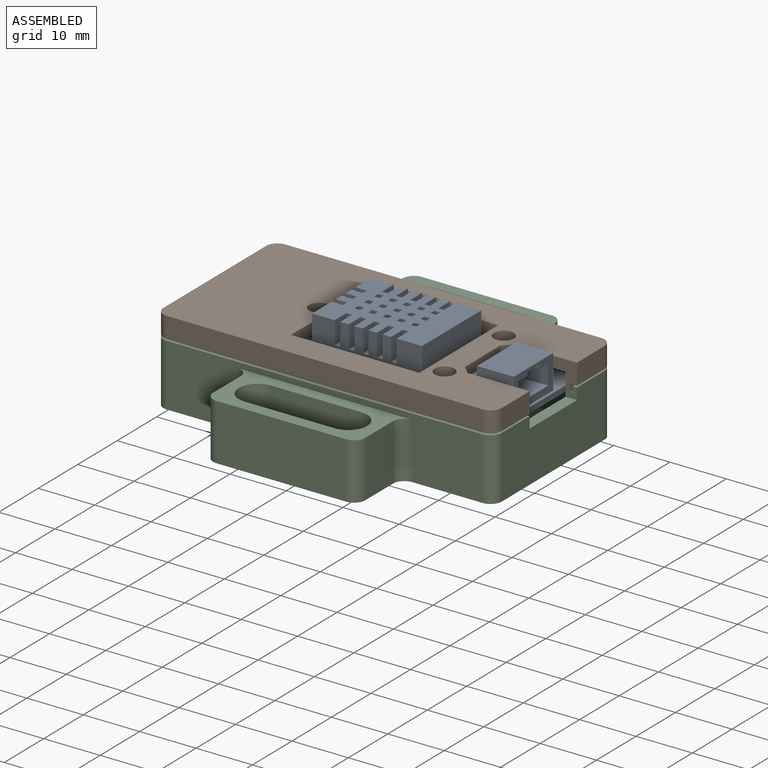
[diagram: assembled view]
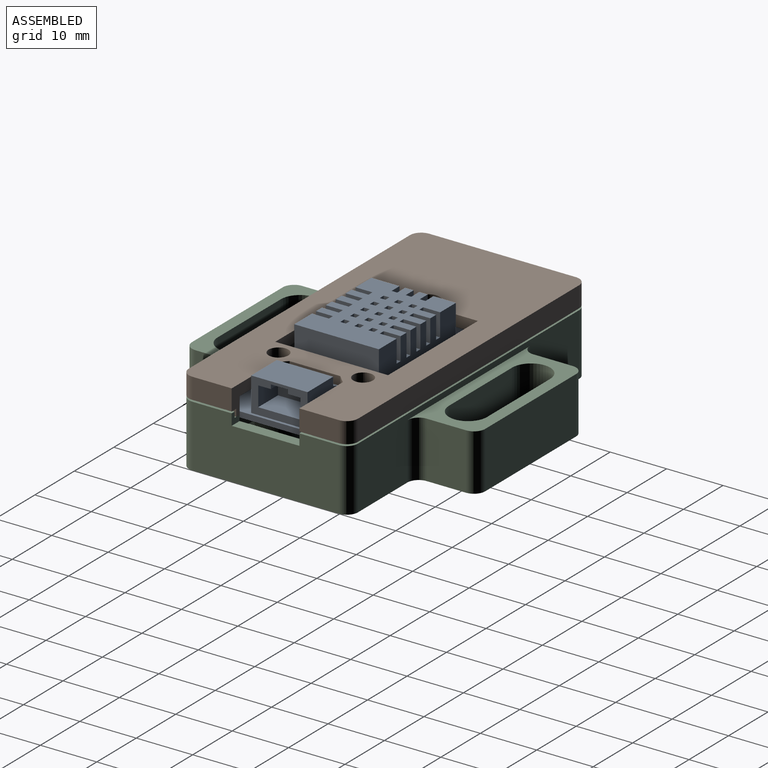
[diagram: assembled view, second angle]
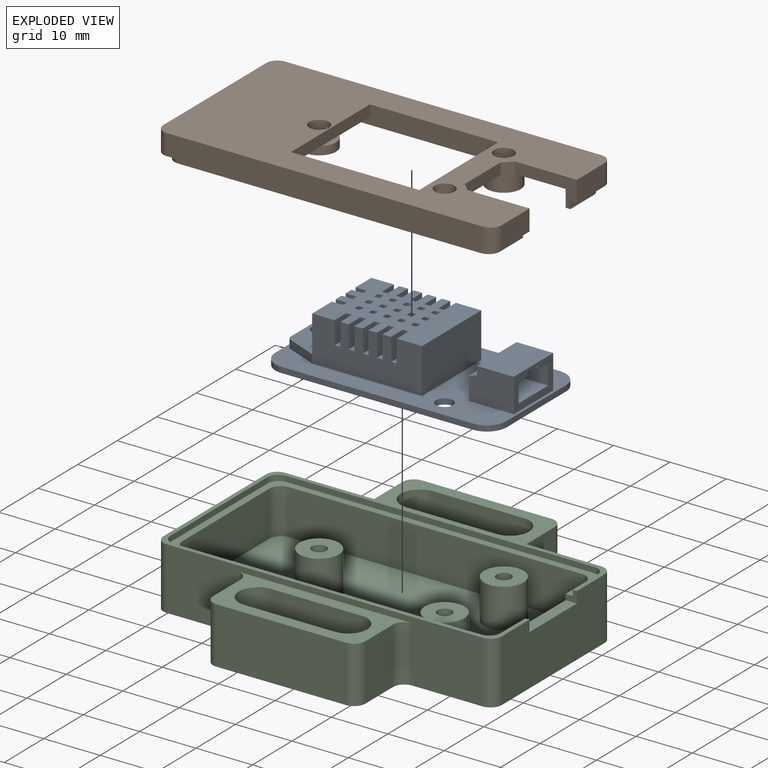
[diagram: exploded view]
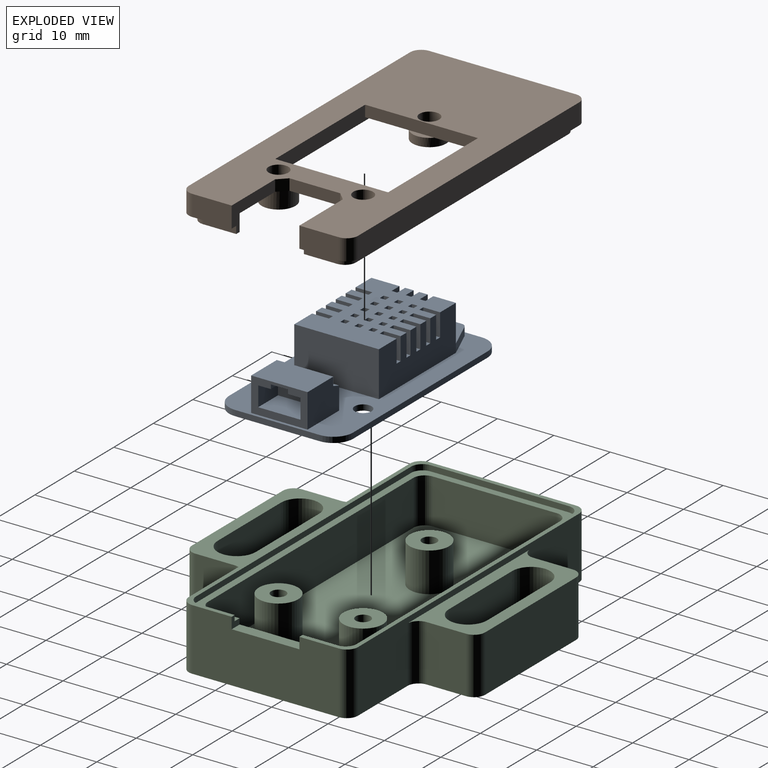
[diagram: exploded view, second angle]
ASSEMBLY  parts=3 mates=6
PART A: 169 faces, bbox 41x22x9 mm
  f0: plane 19.5x8mm, normal (0,-1,0), area 136mm2, adj f1,f9,f30,f32,f33,f63,f65,f66
  f1: plane 19.5x15mm, normal (0,0,-1), area 241.5mm2, adj f0,f30,f31,f32,f42,f43,f44,f45
  f2: plane 5x2.25mm, normal (0,0,1), area 11.3mm2, adj f3,f22,f26,f28
  f3: plane 10x6mm, normal (1,0,0), area 31.5mm2, adj f2,f4,f6,f7,f9,f22,f23,f24
  f4: plane 8x6mm, normal (0,-1,0), area 45.4mm2, adj f3,f5,f7,f9,f20,f21
  f5: plane 10x4mm, normal (-1,0,0), area 40mm2, adj f4,f6,f9,f21
  f6: plane 8x6mm, normal (0,1,0), area 45.4mm2, adj f3,f5,f7,f9,f20,f21
  f7: plane 10x6.5mm, normal (0,0,-1), area 65mm2, adj f3,f4,f6,f20
  f8: plane 41x22mm, normal (0,0,1), area 870.3mm2, adj f10,f11,f12,f13,f14,f15,f16,f17
  f9: plane 41x22mm, normal (0,0,-1), area 430mm2, adj f0,f3,f4,f5,f6,f10,f11,f12
  f10: plane 15x1mm, normal (1,0,0), area 15mm2, adj f8,f9,f16,f19
  f11: plane 34x1mm, normal (0,1,0), area 34mm2, adj f8,f9,f16,f17
  f12: plane 15x1mm, normal (-1,0,0), area 15mm2, adj f8,f9,f17,f18
  f13: plane 34x1mm, normal (0,-1,0), area 34mm2, adj f8,f9,f18,f19
  f14: cylinder r=1.5mm len=3mm, axis (0,0,1), area 9.4mm2, adj f8,f9
  f15: cylinder r=1.5mm len=3mm, axis (0,0,1), area 9.4mm2, adj f8,f9
  f16: cylinder r=3.5mm len=3.5mm, axis (0,0,1), area 5.5mm2, adj f8,f9,f10,f11
  f17: cylinder r=3.5mm len=3.5mm, axis (0,0,-1), area 5.5mm2, adj f8,f9,f11,f12
  f18: cylinder r=3.5mm len=3.5mm, axis (0,0,1), area 5.5mm2, adj f8,f9,f12,f13
  f19: cylinder r=3.5mm len=3.5mm, axis (0,0,-1), area 5.5mm2, adj f8,f9,f10,f13
  f20: plane 10x1.5mm, normal (-1,0,0), area 15mm2, adj f4,f6,f7,f21
  f21: plane 10x1.5mm, normal (-0.32,0,-0.95), area 15.8mm2, adj f4,f5,f6,f20
  f22: plane 5x3.5mm, normal (0,1,0), area 17.5mm2, adj f2,f3,f25,f26
  f23: plane 5x2.25mm, normal (0,0,1), area 11.3mm2, adj f3,f24,f26,f27
  f24: plane 5x3.5mm, normal (0,-1,0), area 17.5mm2, adj f3,f23,f25,f26
  f25: plane 7.5x5mm, normal (0,0,-1), area 37.5mm2, adj f3,f22,f24,f26
  f26: plane 7.5x4.25mm, normal (1,0,0), area 28.5mm2, adj f2,f22,f23,f24,f25,f27,f28,f29
  f27: plane 5x0.75mm, normal (0,-1,0), area 3.7mm2, adj f3,f23,f26,f29
  f28: plane 5x0.75mm, normal (0,1,0), area 3.7mm2, adj f2,f3,f26,f29
  f29: plane 5x3mm, normal (0,0,1), area 15mm2, adj f3,f26,f27,f28
  f30: plane 15x6.5mm, normal (-1,0,0), area 85.5mm2, adj f0,f1,f31,f36,f47,f48,f50,f51
  f31: plane 19.5x8mm, normal (0,1,0), area 136mm2, adj f1,f9,f30,f32,f35,f59,f61,f62
  f32: plane 15x8mm, normal (1,0,0), area 120mm2, adj f0,f1,f9,f31
  f33: plane 5.38x2.24mm, normal (-0.38,-0.92,0), area 8.7mm2, adj f0,f9,f36,f37
  f34: plane 8.67x1.5mm, normal (-1,0,0), area 13mm2, adj f9,f36,f37,f38
  f35: plane 5.38x2.24mm, normal (-0.38,0.92,0), area 8.7mm2, adj f9,f31,f36,f38
  f36: plane 15x6mm, normal (0,0,-1), area 69.1mm2, adj f30,f33,f34,f35,f37,f38,f41
  f37: cylinder r=1mm len=1.5mm, axis (0,0,1), area 1.8mm2, adj f9,f33,f34,f36
  f38: cylinder r=1mm len=1.5mm, axis (0,0,-1), area 1.8mm2, adj f9,f34,f35,f36
  f39: plane 3x3mm, normal (0,0,1), area 1.3mm2, adj f40,f41
  f40: cylinder r=1.5mm len=3mm, axis (0,0,1), area 9.4mm2, adj f8,f39
  f41: cylinder r=1.35mm len=2.7mm, axis (0,0,1), area 12.7mm2, adj f36,f39
  f42: plane 4x1mm, normal (0,1,0), area 4mm2, adj f1,f43,f45,f46
  f43: plane 4x1mm, normal (1,0,0), area 4mm2, adj f1,f42,f44,f46
  f44: plane 4x1mm, normal (0,-1,0), area 4mm2, adj f1,f43,f45,f46
  f45: plane 4x1mm, normal (-1,0,0), area 4mm2, adj f1,f42,f44,f46
  f46: plane 1x1mm, normal (0,0,-1), area 1mm2, adj f42,f43,f44,f45
  f47: plane 4x2mm, normal (0,1,0), area 8mm2, adj f1,f30,f49,f50
  f48: plane 4x2mm, normal (0,-1,0), area 8mm2, adj f1,f30,f49,f50
  f49: plane 4x1mm, normal (-1,0,0), area 4mm2, adj f1,f47,f48,f50
  f50: plane 2x1mm, normal (0,0,-1), area 2mm2, adj f30,f47,f48,f49
  f51: plane 4x2mm, normal (0,1,0), area 8mm2, adj f1,f30,f53,f54
  f52: plane 4x2mm, normal (0,-1,0), area 8mm2, adj f1,f30,f53,f54
  f53: plane 4x1mm, normal (-1,0,0), area 4mm2, adj f1,f51,f52,f54
  f54: plane 2x1mm, normal (0,0,-1), area 2mm2, adj f30,f51,f52,f53
  f55: plane 4x2mm, normal (0,1,0), area 8mm2, adj f1,f30,f57,f58
  f56: plane 4x2mm, normal (0,-1,0), area 8mm2, adj f1,f30,f57,f58
  f57: plane 4x1mm, normal (-1,0,0), area 4mm2, adj f1,f55,f56,f58
  f58: plane 2x1mm, normal (0,0,-1), area 2mm2, adj f30,f55,f56,f57
  f59: plane 4x3mm, normal (-1,0,0), area 12mm2, adj f1,f31,f60,f62
  f60: plane 4x1mm, normal (0,1,0), area 4mm2, adj f1,f59,f61,f62
  f61: plane 4x3mm, normal (1,0,0), area 12mm2, adj f1,f31,f60,f62
  f62: plane 3x1mm, normal (0,0,-1), area 3mm2, adj f31,f59,f60,f61
  f63: plane 4x3mm, normal (1,0,0), area 12mm2, adj f0,f1,f64,f66
  f64: plane 4x1mm, normal (0,-1,0), area 4mm2, adj f1,f63,f65,f66
  f65: plane 4x3mm, normal (-1,0,0), area 12mm2, adj f0,f1,f64,f66
  f66: plane 3x1mm, normal (0,0,-1), area 3mm2, adj f0,f63,f64,f65
  f67: plane 4x3mm, normal (1,0,0), area 12mm2, adj f0,f1,f68,f70
  f68: plane 4x1mm, normal (0,-1,0), area 4mm2, adj f1,f67,f69,f70
  f69: plane 4x3mm, normal (-1,0,0), area 12mm2, adj f0,f1,f68,f70
  f70: plane 3x1mm, normal (0,0,-1), area 3mm2, adj f0,f67,f68,f69
  f71: plane 4x3mm, normal (1,0,0), area 12mm2, adj f0,f1,f72,f74
  f72: plane 4x1mm, normal (0,-1,0), area 4mm2, adj f1,f71,f73,f74
  f73: plane 4x3mm, normal (-1,0,0), area 12mm2, adj f0,f1,f72,f74
  f74: plane 3x1mm, normal (0,0,-1), area 3mm2, adj f0,f71,f72,f73
  f75: plane 4x3mm, normal (1,0,0), area 12mm2, adj f1,f31,f77,f78
  f76: plane 4x3mm, normal (-1,0,0), area 12mm2, adj f1,f31,f77,f78
  f77: plane 4x1mm, normal (0,1,0), area 4mm2, adj f1,f75,f76,f78
  f78: plane 3x1mm, normal (0,0,-1), area 3mm2, adj f31,f75,f76,f77
  f79: plane 4x3mm, normal (1,0,0), area 12mm2, adj f1,f31,f81,f82
  f80: plane 4x3mm, normal (-1,0,0), area 12mm2, adj f1,f31,f81,f82
  f81: plane 4x1mm, normal (0,1,0), area 4mm2, adj f1,f79,f80,f82
  f82: plane 3x1mm, normal (0,0,-1), area 3mm2, adj f31,f79,f80,f81
  f83: plane 4x3mm, normal (1,0,0), area 12mm2, adj f1,f31,f85,f86
  f84: plane 4x3mm, normal (-1,0,0), area 12mm2, adj f1,f31,f85,f86
  f85: plane 4x1mm, normal (0,1,0), area 4mm2, adj f1,f83,f84,f86
  f86: plane 3x1mm, normal (0,0,-1), area 3mm2, adj f31,f83,f84,f85
  f87: plane 4x3mm, normal (-1,0,0), area 12mm2, adj f1,f31,f88,f90
  f88: plane 4x1mm, normal (0,1,0), area 4mm2, adj f1,f87,f89,f90
  f89: plane 4x3mm, normal (1,0,0), area 12mm2, adj f1,f31,f88,f90
  f90: plane 3x1mm, normal (0,0,-1), area 3mm2, adj f31,f87,f88,f89
  f91: plane 4x1mm, normal (0,1,0), area 4mm2, adj f1,f92,f94,f95
  f92: plane 4x1mm, normal (1,0,0), area 4mm2, adj f1,f91,f93,f95
  f93: plane 4x1mm, normal (0,-1,0), area 4mm2, adj f1,f92,f94,f95
  f94: plane 4x1mm, normal (-1,0,0), area 4mm2, adj f1,f91,f93,f95
  f95: plane 1x1mm, normal (0,0,-1), area 1mm2, adj f91,f92,f93,f94
  f96: plane 4x1mm, normal (0,1,0), area 4mm2, adj f1,f97,f99,f100
  f97: plane 4x1mm, normal (1,0,0), area 4mm2, adj f1,f96,f98,f100
  f98: plane 4x1mm, normal (0,-1,0), area 4mm2, adj f1,f97,f99,f100
  f99: plane 4x1mm, normal (-1,0,0), area 4mm2, adj f1,f96,f98,f100
  f100: plane 1x1mm, normal (0,0,-1), area 1mm2, adj f96,f97,f98,f99
  f101: plane 4x1mm, normal (0,1,0), area 4mm2, adj f1,f102,f104,f105
  f102: plane 4x1mm, normal (1,0,0), area 4mm2, adj f1,f101,f103,f105
  f103: plane 4x1mm, normal (0,-1,0), area 4mm2, adj f1,f102,f104,f105
  f104: plane 4x1mm, normal (-1,0,0), area 4mm2, adj f1,f101,f103,f105
  f105: plane 1x1mm, normal (0,0,-1), area 1mm2, adj f101,f102,f103,f104
  f106: plane 4x1mm, normal (0,1,0), area 4mm2, adj f1,f107,f109,f110
  f107: plane 4x1mm, normal (1,0,0), area 4mm2, adj f1,f106,f108,f110
  f108: plane 4x1mm, normal (0,-1,0), area 4mm2, adj f1,f107,f109,f110
  f109: plane 4x1mm, normal (-1,0,0), area 4mm2, adj f1,f106,f108,f110
  f110: plane 1x1mm, normal (0,0,-1), area 1mm2, adj f106,f107,f108,f109
  f111: plane 4x1mm, normal (0,1,0), area 4mm2, adj f1,f112,f114,f115
  f112: plane 4x1mm, normal (1,0,0), area 4mm2, adj f1,f111,f113,f115
  f113: plane 4x1mm, normal (0,-1,0), area 4mm2, adj f1,f112,f114,f115
  f114: plane 4x1mm, normal (-1,0,0), area 4mm2, adj f1,f111,f113,f115
  f115: plane 1x1mm, normal (0,0,-1), area 1mm2, adj f111,f112,f113,f114
  f116: plane 4x1mm, normal (0,1,0), area 4mm2, adj f1,f117,f119,f120
  f117: plane 4x1mm, normal (1,0,0), area 4mm2, adj f1,f116,f118,f120
  f118: plane 4x1mm, normal (0,-1,0), area 4mm2, adj f1,f117,f119,f120
  f119: plane 4x1mm, normal (-1,0,0), area 4mm2, adj f1,f116,f118,f120
  f120: plane 1x1mm, normal (0,0,-1), area 1mm2, adj f116,f117,f118,f119
  f121: plane 4x1mm, normal (0,1,0), area 4mm2, adj f1,f122,f124,f125
  f122: plane 4x1mm, normal (1,0,0), area 4mm2, adj f1,f121,f123,f125
  f123: plane 4x1mm, normal (0,-1,0), area 4mm2, adj f1,f122,f124,f125
  f124: plane 4x1mm, normal (-1,0,0), area 4mm2, adj f1,f121,f123,f125
  f125: plane 1x1mm, normal (0,0,-1), area 1mm2, adj f121,f122,f123,f124
  f126: plane 4x1mm, normal (0,1,0), area 4mm2, adj f1,f127,f129,f130
  f127: plane 4x1mm, normal (1,0,0), area 4mm2, adj f1,f126,f128,f130
  f128: plane 4x1mm, normal (0,-1,0), area 4mm2, adj f1,f127,f129,f130
  f129: plane 4x1mm, normal (-1,0,0), area 4mm2, adj f1,f126,f128,f130
  f130: plane 1x1mm, normal (0,0,-1), area 1mm2, adj f126,f127,f128,f129
  f131: plane 4x3mm, normal (1,0,0), area 12mm2, adj f0,f1,f132,f134
  f132: plane 4x1mm, normal (0,-1,0), area 4mm2, adj f1,f131,f133,f134
  f133: plane 4x3mm, normal (-1,0,0), area 12mm2, adj f0,f1,f132,f134
  f134: plane 3x1mm, normal (0,0,-1), area 3mm2, adj f0,f131,f132,f133
  f135: plane 4x3mm, normal (1,0,0), area 12mm2, adj f0,f1,f136,f138
  f136: plane 4x1mm, normal (0,-1,0), area 4mm2, adj f1,f135,f137,f138
  f137: plane 4x3mm, normal (-1,0,0), area 12mm2, adj f0,f1,f136,f138
  f138: plane 3x1mm, normal (0,0,-1), area 3mm2, adj f0,f135,f136,f137
  f139: plane 4x1mm, normal (0,1,0), area 4mm2, adj f1,f140,f142,f143
  f140: plane 4x1mm, normal (1,0,0), area 4mm2, adj f1,f139,f141,f143
  f141: plane 4x1mm, normal (0,-1,0), area 4mm2, adj f1,f140,f142,f143
  f142: plane 4x1mm, normal (-1,0,0), area 4mm2, adj f1,f139,f141,f143
  f143: plane 1x1mm, normal (0,0,-1), area 1mm2, adj f139,f140,f141,f142
  f144: plane 4x1mm, normal (0,1,0), area 4mm2, adj f1,f145,f147,f148
  f145: plane 4x1mm, normal (1,0,0), area 4mm2, adj f1,f144,f146,f148
  f146: plane 4x1mm, normal (0,-1,0), area 4mm2, adj f1,f145,f147,f148
  f147: plane 4x1mm, normal (-1,0,0), area 4mm2, adj f1,f144,f146,f148
  f148: plane 1x1mm, normal (0,0,-1), area 1mm2, adj f144,f145,f146,f147
  f149: plane 4x1mm, normal (0,1,0), area 4mm2, adj f1,f150,f152,f153
  f150: plane 4x1mm, normal (1,0,0), area 4mm2, adj f1,f149,f151,f153
  f151: plane 4x1mm, normal (0,-1,0), area 4mm2, adj f1,f150,f152,f153
  f152: plane 4x1mm, normal (-1,0,0), area 4mm2, adj f1,f149,f151,f153
  f153: plane 1x1mm, normal (0,0,-1), area 1mm2, adj f149,f150,f151,f152
  f154: plane 4x1mm, normal (0,1,0), area 4mm2, adj f1,f155,f157,f158
  f155: plane 4x1mm, normal (1,0,0), area 4mm2, adj f1,f154,f156,f158
  f156: plane 4x1mm, normal (0,-1,0), area 4mm2, adj f1,f155,f157,f158
  f157: plane 4x1mm, normal (-1,0,0), area 4mm2, adj f1,f154,f156,f158
  f158: plane 1x1mm, normal (0,0,-1), area 1mm2, adj f154,f155,f156,f157
  f159: plane 4x1mm, normal (0,1,0), area 4mm2, adj f1,f160,f162,f163
  f160: plane 4x1mm, normal (1,0,0), area 4mm2, adj f1,f159,f161,f163
  f161: plane 4x1mm, normal (0,-1,0), area 4mm2, adj f1,f160,f162,f163
  f162: plane 4x1mm, normal (-1,0,0), area 4mm2, adj f1,f159,f161,f163
  f163: plane 1x1mm, normal (0,0,-1), area 1mm2, adj f159,f160,f161,f162
  f164: plane 4x1mm, normal (0,1,0), area 4mm2, adj f1,f165,f167,f168
  f165: plane 4x1mm, normal (1,0,0), area 4mm2, adj f1,f164,f166,f168
  f166: plane 4x1mm, normal (0,-1,0), area 4mm2, adj f1,f165,f167,f168
  f167: plane 4x1mm, normal (-1,0,0), area 4mm2, adj f1,f164,f166,f168
  f168: plane 1x1mm, normal (0,0,-1), area 1mm2, adj f164,f165,f166,f167
PART B: 52 faces, bbox 60x30x5 mm
  f0: plane 60x30mm, normal (0,0,-1), area 1165mm2, adj f1,f15,f16,f17,f18,f19,f20,f21
  f1: plane 7x3.7mm, normal (-1,0,0), area 25.9mm2, adj f0,f14,f37,f40
  f2: plane 5x3mm, normal (1,0,0), area 15mm2, adj f4,f5,f32,f41
  f3: plane 5.85x1.3mm, normal (-1,0,0), area 7.6mm2, adj f5,f14,f30,f41
  f4: plane 56x26mm, normal (0,0,1), area 792.9mm2, adj f2,f6,f7,f8,f9,f23,f25,f27
  f5: plane 57.7x27.7mm, normal (0,0,1), area 132.1mm2, adj f2,f3,f6,f7,f8,f9,f10,f11
  f6: plane 22x3mm, normal (-1,0,0), area 66mm2, adj f4,f5,f33,f35
  f7: plane 52x3mm, normal (0,-1,0), area 156mm2, adj f4,f5,f34,f35
  f8: plane 5x3mm, normal (1,0,0), area 15mm2, adj f4,f5,f34,f40
  f9: plane 52x3mm, normal (0,1,0), area 156mm2, adj f4,f5,f32,f33
  f10: plane 53.7x1.3mm, normal (0,1,0), area 69.8mm2, adj f5,f14,f28,f31
  f11: plane 23.7x1.3mm, normal (1,0,0), area 30.8mm2, adj f5,f14,f28,f29
  f12: plane 53.7x1.3mm, normal (0,-1,0), area 69.8mm2, adj f5,f14,f29,f30
  f13: plane 5.85x1.3mm, normal (-1,0,0), area 7.6mm2, adj f5,f14,f31,f40
  f14: plane 60x30mm, normal (0,0,1), area 187.9mm2, adj f1,f3,f10,f11,f12,f13,f15,f16
  f15: plane 56x3.7mm, normal (0,-1,0), area 207.2mm2, adj f0,f14,f38,f39
  f16: plane 7x3.7mm, normal (-1,0,0), area 25.9mm2, adj f0,f14,f38,f41
  f17: plane 56x3.7mm, normal (0,1,0), area 207.2mm2, adj f0,f14,f36,f37
  f18: plane 26x3.7mm, normal (1,0,0), area 96.2mm2, adj f0,f14,f36,f39
  f19: cylinder r=1.75mm len=5mm, axis (0,0,1), area 55mm2, adj f0,f24
  f20: cylinder r=1.75mm len=5mm, axis (0,0,1), area 55mm2, adj f0,f22
  f21: cylinder r=1.75mm len=3.5mm, axis (0,0,1), area 38.5mm2, adj f0,f26
  f22: plane 6x6mm, normal (0,0,1), area 18.7mm2, adj f20,f23
  f23: cylinder r=3mm len=6mm, axis (0,0,-1), area 56.5mm2, adj f4,f22,f44
  f24: plane 6x6mm, normal (0,0,1), area 18.7mm2, adj f19,f25
  f25: cylinder r=3mm len=6mm, axis (0,0,-1), area 56.5mm2, adj f4,f24,f43
  f26: plane 6x6mm, normal (0,0,1), area 18.7mm2, adj f21,f27
  f27: cylinder r=3mm len=6mm, axis (0,0,-1), area 28.3mm2, adj f4,f26,f42
  f28: cylinder r=2mm len=2mm, axis (0,0,-1), area 4.1mm2, adj f5,f10,f11,f14
  f29: cylinder r=2mm len=2mm, axis (0,0,1), area 4.1mm2, adj f5,f11,f12,f14
  f30: cylinder r=2mm len=2mm, axis (0,0,-1), area 4.1mm2, adj f3,f5,f12,f14
  f31: cylinder r=2mm len=2mm, axis (0,0,1), area 4.1mm2, adj f5,f10,f13,f14
  f32: cylinder r=2mm len=3mm, axis (0,0,-1), area 9.4mm2, adj f2,f4,f5,f9
  f33: cylinder r=2mm len=3mm, axis (0,0,1), area 9.4mm2, adj f4,f5,f6,f9
  f34: cylinder r=2mm len=3mm, axis (0,0,1), area 9.4mm2, adj f4,f5,f7,f8
  f35: cylinder r=2mm len=3mm, axis (0,0,-1), area 9.4mm2, adj f4,f5,f6,f7
  f36: cylinder r=2mm len=3.7mm, axis (0,0,1), area 11.6mm2, adj f0,f14,f17,f18
  f37: cylinder r=2mm len=3.7mm, axis (0,0,-1), area 11.6mm2, adj f0,f1,f14,f17
  f38: cylinder r=2mm len=3.7mm, axis (0,0,1), area 11.6mm2, adj f0,f14,f15,f16
  f39: cylinder r=2mm len=3.7mm, axis (0,0,-1), area 11.6mm2, adj f0,f14,f15,f18
  f40: plane 11x5mm, normal (0,-1,0), area 26.5mm2, adj f0,f1,f4,f5,f8,f13,f14,f50
  f41: plane 11x5mm, normal (0,1,0), area 26.5mm2, adj f0,f2,f3,f4,f5,f14,f16,f49
  f42: plane 4.47x1mm, normal (0,0,-1), area 3.1mm2, adj f27,f45
  f43: plane 2.4x0.25mm, normal (0,0,-1), area 0.4mm2, adj f25,f47
  f44: plane 2.4x0.25mm, normal (0,0,-1), area 0.4mm2, adj f23,f47
  f45: plane 20x2mm, normal (-1,0,0), area 40mm2, adj f0,f4,f42,f46,f48
  f46: plane 22.75x2mm, normal (0,1,0), area 45.5mm2, adj f0,f4,f45,f47
  f47: plane 20x2mm, normal (1,0,0), area 40mm2, adj f0,f4,f43,f44,f46,f48
  f48: plane 22.75x2mm, normal (0,-1,0), area 45.5mm2, adj f0,f4,f45,f47
  f49: plane 2x1.5mm, normal (-0.71,0.71,0), area 4.2mm2, adj f0,f4,f41,f51
  f50: plane 2x1.5mm, normal (-0.71,-0.71,0), area 4.2mm2, adj f0,f4,f40,f51
  f51: plane 9x2mm, normal (-1,0,0), area 18mm2, adj f0,f4,f49,f50
PART C: 68 faces, bbox 60x52x11 mm
  f0: plane 22x8mm, normal (1,0,0), area 164mm2, adj f4,f8,f33,f35,f65,f66,f67
  f1: plane 6.25x1mm, normal (1,0,0), area 6.2mm2, adj f4,f13,f30,f67
  f2: plane 26x11mm, normal (-1,0,0), area 262mm2, adj f13,f14,f38,f39,f65,f66,f67
  f3: plane 56x11mm, normal (0,-1,0), area 306mm2, adj f13,f14,f39,f40,f56,f57,f58
  f4: plane 58.5x28.5mm, normal (0,0,1), area 196.3mm2, adj f0,f1,f5,f6,f7,f9,f10,f11
  f5: plane 22x8mm, normal (-1,0,0), area 176mm2, adj f4,f8,f34,f36
  f6: plane 52x8mm, normal (0,-1,0), area 416mm2, adj f4,f8,f35,f36
  f7: plane 52x8mm, normal (0,1,0), area 416mm2, adj f4,f8,f33,f34
  f8: plane 56x26mm, normal (0,0,1), area 1337.1mm2, adj f0,f5,f6,f7,f19,f22,f27,f33
  f9: plane 24.5x1mm, normal (-1,0,0), area 24.5mm2, adj f4,f13,f29,f32
  f10: plane 54.5x1mm, normal (0,1,0), area 54.5mm2, adj f4,f13,f29,f30
  f11: plane 6.25x1mm, normal (1,0,0), area 6.2mm2, adj f4,f13,f31,f65
  f12: plane 54.5x1mm, normal (0,-1,0), area 54.5mm2, adj f4,f13,f31,f32
  f13: plane 60x30mm, normal (0,0,1), area 123.7mm2, adj f1,f2,f3,f9,f10,f11,f12,f15
  f14: plane 60x52mm, normal (0,0,-1), area 2103mm2, adj f2,f3,f15,f16,f37,f38,f39,f40
  f15: plane 56x11mm, normal (0,1,0), area 306mm2, adj f13,f14,f37,f38,f48,f63,f64
  f16: plane 26x11mm, normal (1,0,0), area 286mm2, adj f13,f14,f37,f40
  f17: plane 7x7mm, normal (0,0,1), area 33.2mm2, adj f18,f19
  f18: cylinder r=1.3mm len=7mm, axis (0,0,-1), area 57.2mm2, adj f17,f20
  f19: cylinder r=3.5mm len=7mm, axis (0,0,-1), area 153.9mm2, adj f8,f17
  f20: plane 2.6x2.6mm, normal (0,0,1), area 5.3mm2, adj f18
  f21: plane 7x7mm, normal (0,0,1), area 33.2mm2, adj f22,f23
  f22: cylinder r=3.5mm len=7mm, axis (0,0,-1), area 153.9mm2, adj f8,f21
  f23: cylinder r=1.3mm len=7mm, axis (0,0,-1), area 57.2mm2, adj f21,f24
  f24: plane 2.6x2.6mm, normal (0,0,1), area 5.3mm2, adj f23
  f25: plane 7x7mm, normal (0,0,1), area 33.2mm2, adj f26,f27
  f26: cylinder r=1.3mm len=7mm, axis (0,0,-1), area 57.2mm2, adj f25,f28
  f27: cylinder r=3.5mm len=7mm, axis (0,0,-1), area 153.9mm2, adj f8,f25
  f28: plane 2.6x2.6mm, normal (0,0,1), area 5.3mm2, adj f26
  f29: cylinder r=2mm len=2mm, axis (0,0,1), area 3.1mm2, adj f4,f9,f10,f13
  f30: cylinder r=2mm len=2mm, axis (0,0,-1), area 3.1mm2, adj f1,f4,f10,f13
  f31: cylinder r=2mm len=2mm, axis (0,0,1), area 3.1mm2, adj f4,f11,f12,f13
  f32: cylinder r=2mm len=2mm, axis (0,0,-1), area 3.1mm2, adj f4,f9,f12,f13
  f33: cylinder r=2mm len=8mm, axis (0,0,-1), area 25.1mm2, adj f0,f4,f7,f8
  f34: cylinder r=2mm len=8mm, axis (0,0,1), area 25.1mm2, adj f4,f5,f7,f8
  f35: cylinder r=2mm len=8mm, axis (0,0,1), area 25.1mm2, adj f0,f4,f6,f8
  f36: cylinder r=2mm len=8mm, axis (0,0,-1), area 25.1mm2, adj f4,f5,f6,f8
  f37: cylinder r=2mm len=11mm, axis (0,0,1), area 34.6mm2, adj f13,f14,f15,f16
  f38: cylinder r=2mm len=11mm, axis (0,0,-1), area 34.6mm2, adj f2,f13,f14,f15
  f39: cylinder r=2mm len=11mm, axis (0,0,1), area 34.6mm2, adj f2,f3,f13,f14
  f40: cylinder r=2mm len=11mm, axis (0,0,-1), area 34.6mm2, adj f3,f13,f14,f16
  f41: cylinder r=3.38mm len=10mm, axis (0,0,-1), area 106mm2, adj f14,f42,f47,f48
  f42: plane 16x10mm, normal (0,1,0), area 160mm2, adj f14,f41,f43,f48
  f43: cylinder r=3.38mm len=10mm, axis (0,0,-1), area 106mm2, adj f14,f42,f47,f48
  f44: plane 10x7mm, normal (1,0,0), area 70mm2, adj f14,f48,f61,f64
  f45: plane 23x10mm, normal (0,1,0), area 230mm2, adj f14,f48,f61,f62
  f46: plane 10x7mm, normal (-1,0,0), area 70mm2, adj f14,f48,f62,f63
  f47: plane 16x10mm, normal (0,-1,0), area 160mm2, adj f14,f41,f43,f48
  f48: plane 31x11mm, normal (0,0,1), area 153.2mm2, adj f15,f41,f42,f43,f44,f45,f46,f47
  f49: plane 10x7mm, normal (1,0,0), area 70mm2, adj f14,f56,f57,f60
  f50: plane 10x7mm, normal (-1,0,0), area 70mm2, adj f14,f56,f58,f59
  f51: cylinder r=3.38mm len=10mm, axis (0,0,-1), area 106mm2, adj f14,f52,f54,f56
  f52: plane 16x10mm, normal (0,-1,0), area 160mm2, adj f14,f51,f53,f56
  f53: cylinder r=3.38mm len=10mm, axis (0,0,-1), area 106mm2, adj f14,f52,f54,f56
  f54: plane 16x10mm, normal (0,1,0), area 160mm2, adj f14,f51,f53,f56
  f55: plane 23x10mm, normal (0,-1,0), area 230mm2, adj f14,f56,f59,f60
  f56: plane 31x11mm, normal (0,0,1), area 153.2mm2, adj f3,f49,f50,f51,f52,f53,f54,f55
  f57: cylinder r=2mm len=10mm, axis (0,0,-1), area 31.4mm2, adj f3,f14,f49,f56
  f58: cylinder r=2mm len=10mm, axis (0,0,1), area 31.4mm2, adj f3,f14,f50,f56
  f59: cylinder r=2mm len=10mm, axis (0,0,-1), area 31.4mm2, adj f14,f50,f55,f56
  f60: cylinder r=2mm len=10mm, axis (0,0,1), area 31.4mm2, adj f14,f49,f55,f56
  f61: cylinder r=2mm len=10mm, axis (0,0,1), area 31.4mm2, adj f14,f44,f45,f48
  f62: cylinder r=2mm len=10mm, axis (0,0,-1), area 31.4mm2, adj f14,f45,f46,f48
  f63: cylinder r=2mm len=10mm, axis (0,0,1), area 31.4mm2, adj f14,f15,f46,f48
  f64: cylinder r=2mm len=10mm, axis (0,0,-1), area 31.4mm2, adj f14,f15,f44,f48
  f65: plane 2x2mm, normal (0,-1,0), area 2.7mm2, adj f0,f2,f4,f11,f13,f66
  f66: plane 12x2mm, normal (0,0,1), area 24mm2, adj f0,f2,f65,f67
  f67: plane 2x2mm, normal (0,1,0), area 2.7mm2, adj f0,f1,f2,f4,f13,f66
PLACE A rot(axis=(1,0,0),180deg) t=(-44.12,58.49,43.5)mm
PLACE B rot(axis=(0,1,0),180deg) t=(-50.62,58.49,48.5)mm
PLACE C rot(axis=(0,0,1),180deg) t=(-50.62,58.49,33.5)mm
MATE cylindrical B.f19 <-> C.f18  axis (0,0,-1) through (-34.62,50.99,46)mm
MATE cylindrical B.f20 <-> C.f22  axis (0,0,-1) through (-34.62,65.99,48.5)mm
MATE planar A.f8 <-> C.f18  axis (0,0,-1) through (-44.13,58.49,42.5)mm
MATE cylindrical A.f14 <-> C.f18  axis (0,0,-1) through (-34.62,50.99,43)mm
MATE planar C.f4 <-> B.f5  axis (0,0,1) through (-79.87,46.24,43.5)mm
MATE cylindrical A.f15 <-> C.f22  axis (0,0,-1) through (-34.62,65.99,43)mm
